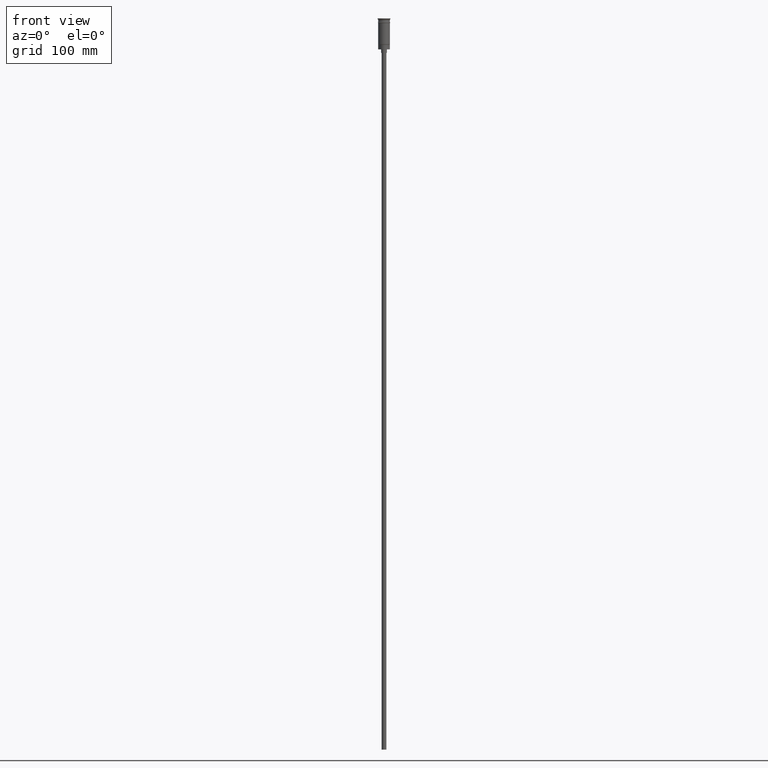
[diagram: clean part render]
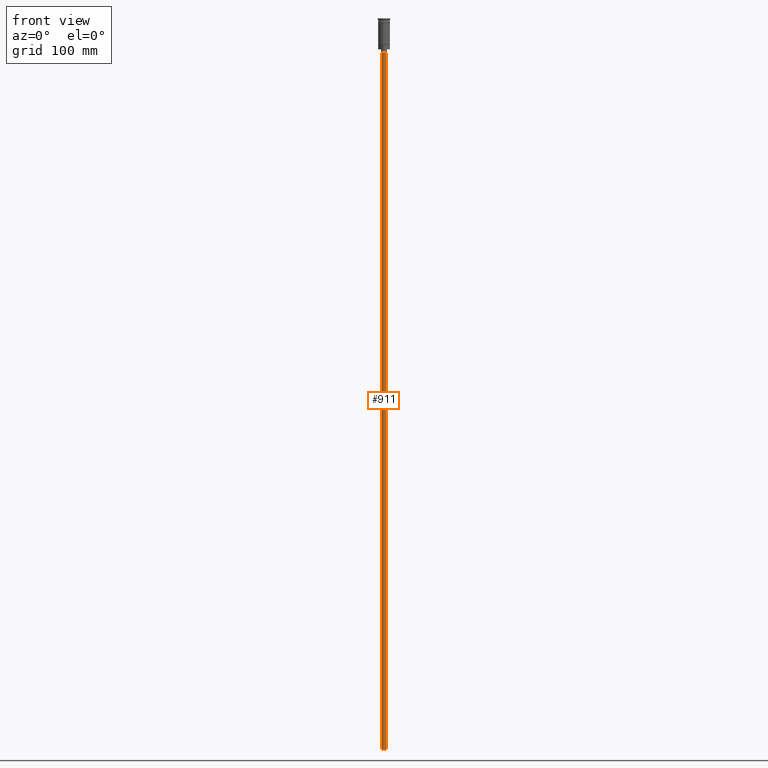
[diagram: same view with one face highlighted and labeled with its STEP entity id]
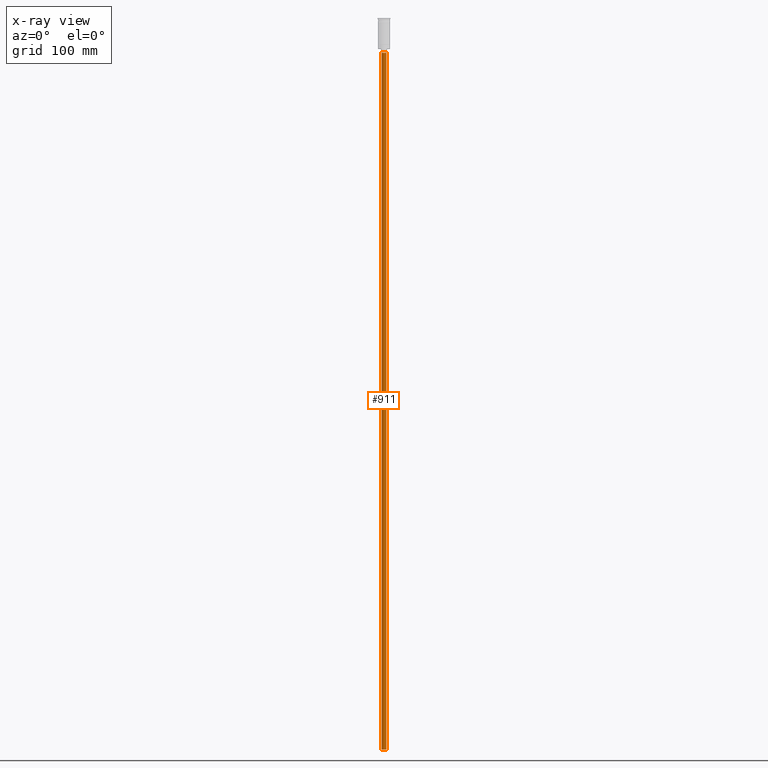
[diagram: x-ray of the same camera — body ghosted, the highlighted face saturated]
A machine part, front view. The second image highlights one B-rep face of the part: STEP entity #911.
The next image is the same camera in x-ray: the body ghosted, the highlighted face saturated — about 0% of this face is hidden behind the body in this view.
In plain terms, the highlighted cylindrical surface (edge-blend (fillet) strip) has radius 2 mm, axis along (-0, -0, 1).
Its self-contained STEP definition (entity closure, byte-faithful):
#45 = ORIENTED_EDGE ( 'NONE', *, *, #943, .F. ) ;
#125 = DIRECTION ( 'NONE',  ( 0.000000000000000000, 0.000000000000000000, -1.000000000000000000 ) ) ;
#289 = LINE ( 'NONE', #932, #468 ) ;
#468 = VECTOR ( 'NONE', #811, 1000.000000000000000 ) ;
#472 = VERTEX_POINT ( 'NONE', #969 ) ;
#618 = DIRECTION ( 'NONE',  ( -1.000000000000000000, 0.000000000000000000, 0.000000000000000000 ) ) ;
#660 = LINE ( 'NONE', #1114, #907 ) ;
#775 = AXIS2_PLACEMENT_3D ( 'NONE', #1244, #1289, #618 ) ;
#780 = VERTEX_POINT ( 'NONE', #800 ) ;
#795 = EDGE_CURVE ( 'NONE', #780, #472, #289, .T. ) ;
#800 = CARTESIAN_POINT ( 'NONE',  ( 2.000000000000000000, 0.000000000000000000, -626.5000000000000000 ) ) ;
#811 = DIRECTION ( 'NONE',  ( -0.000000000000000000, -0.000000000000000000, 1.000000000000000000 ) ) ;
#841 = FACE_OUTER_BOUND ( 'NONE', #1263, .T. ) ;
#907 = VECTOR ( 'NONE', #1420, 1000.000000000000000 ) ;
#911 = ADVANCED_FACE ( 'NONE', ( #841 ), #1474, .T. ) ;
#932 = CARTESIAN_POINT ( 'NONE',  ( 2.000000000000000000, 0.000000000000000000, -626.5000000000000000 ) ) ;
#934 = AXIS2_PLACEMENT_3D ( 'NONE', #1232, #125, #1359 ) ;
#943 = EDGE_CURVE ( 'NONE', #780, #1380, #1354, .T. ) ;
#945 = ORIENTED_EDGE ( 'NONE', *, *, #1136, .T. ) ;
#967 = CARTESIAN_POINT ( 'NONE',  ( 0.000000000000000000, 0.000000000000000000, -626.5000000000000000 ) ) ;
#969 = CARTESIAN_POINT ( 'NONE',  ( 2.000000000000000000, 0.000000000000000000, -29.50000000000000000 ) ) ;
#976 = DIRECTION ( 'NONE',  ( -0.000000000000000000, -0.000000000000000000, 1.000000000000000000 ) ) ;
#994 = EDGE_CURVE ( 'NONE', #1380, #1452, #660, .T. ) ;
#1114 = CARTESIAN_POINT ( 'NONE',  ( -2.000000000000000000, 2.449293598294706414E-16, -626.5000000000000000 ) ) ;
#1136 = EDGE_CURVE ( 'NONE', #472, #1452, #1495, .T. ) ;
#1232 = CARTESIAN_POINT ( 'NONE',  ( 0.000000000000000000, 0.000000000000000000, -626.5000000000000000 ) ) ;
#1244 = CARTESIAN_POINT ( 'NONE',  ( 0.000000000000000000, 0.000000000000000000, -29.50000000000000000 ) ) ;
#1262 = CARTESIAN_POINT ( 'NONE',  ( -2.000000000000000000, 2.449293598294706414E-16, -29.50000000000000000 ) ) ;
#1263 = EDGE_LOOP ( 'NONE', ( #1358, #45, #1451, #945 ) ) ;
#1289 = DIRECTION ( 'NONE',  ( 0.000000000000000000, 0.000000000000000000, -1.000000000000000000 ) ) ;
#1326 = AXIS2_PLACEMENT_3D ( 'NONE', #967, #976, #1336 ) ;
#1336 = DIRECTION ( 'NONE',  ( 1.000000000000000000, 0.000000000000000000, 0.000000000000000000 ) ) ;
#1346 = CARTESIAN_POINT ( 'NONE',  ( -2.000000000000000000, 2.449293598294706414E-16, -626.5000000000000000 ) ) ;
#1354 = CIRCLE ( 'NONE', #934, 2.000000000000000000 ) ;
#1358 = ORIENTED_EDGE ( 'NONE', *, *, #994, .F. ) ;
#1359 = DIRECTION ( 'NONE',  ( -1.000000000000000000, 0.000000000000000000, 0.000000000000000000 ) ) ;
#1380 = VERTEX_POINT ( 'NONE', #1346 ) ;
#1420 = DIRECTION ( 'NONE',  ( -0.000000000000000000, -0.000000000000000000, 1.000000000000000000 ) ) ;
#1451 = ORIENTED_EDGE ( 'NONE', *, *, #795, .T. ) ;
#1452 = VERTEX_POINT ( 'NONE', #1262 ) ;
#1474 = CYLINDRICAL_SURFACE ( 'NONE', #1326, 2.000000000000000000 ) ;
#1495 = CIRCLE ( 'NONE', #775, 2.000000000000000000 ) ;